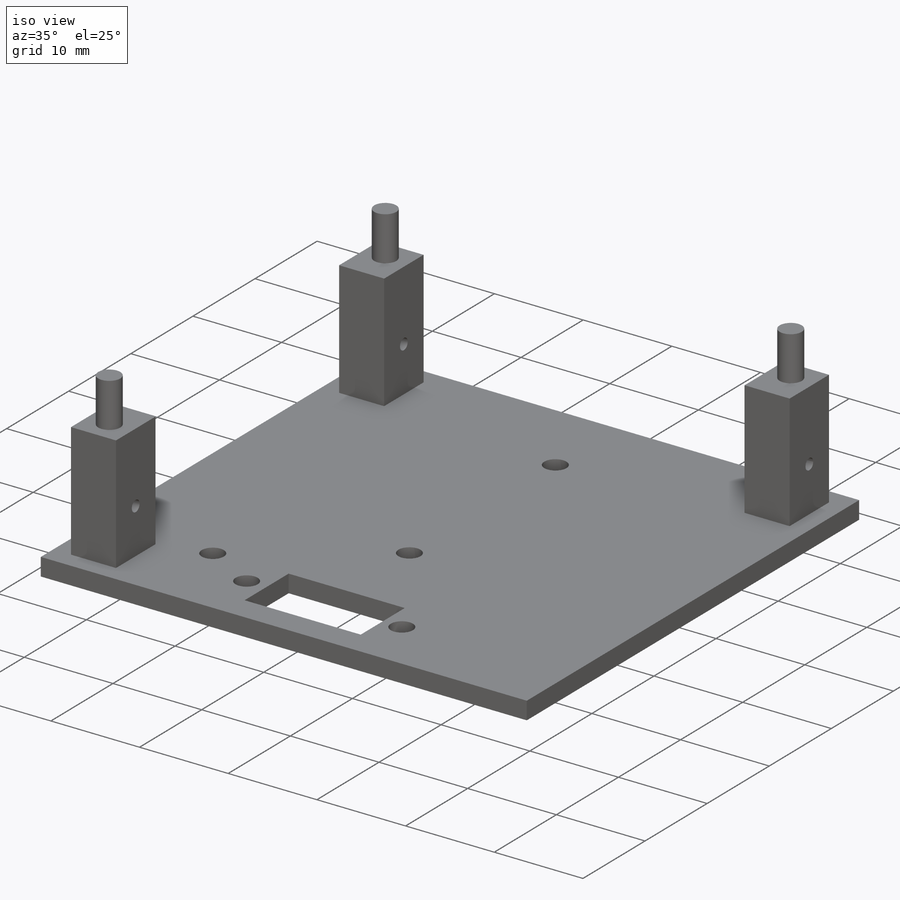
[diagram: iso view]
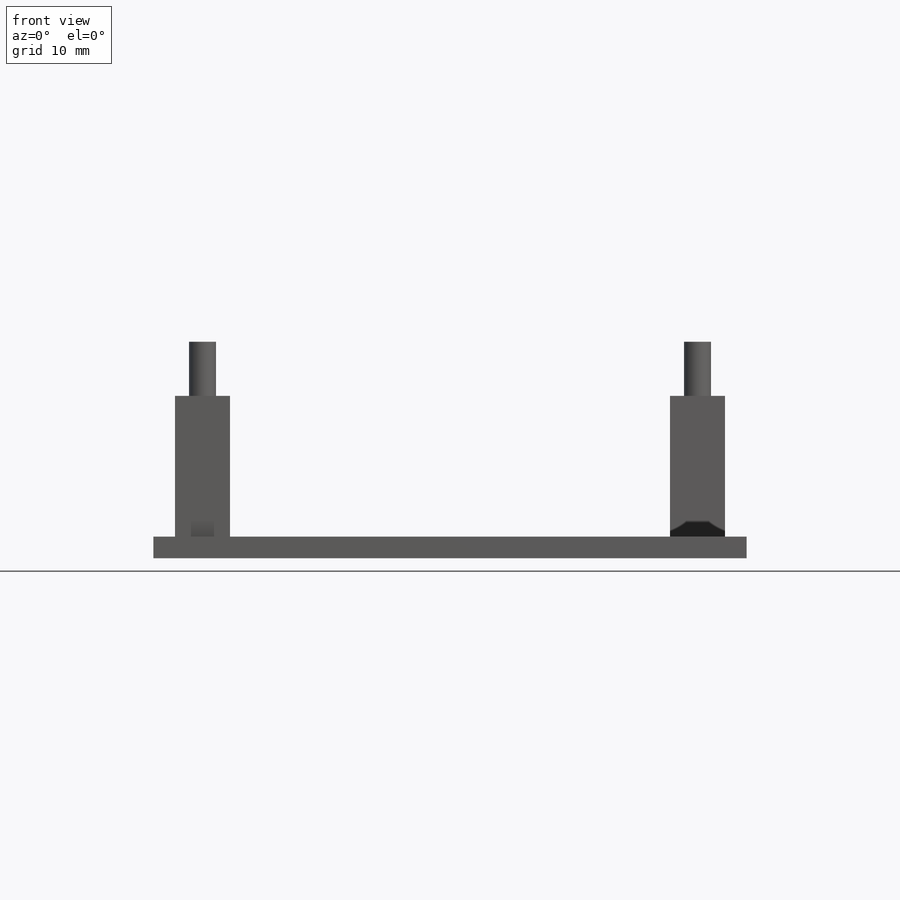
[diagram: front view]
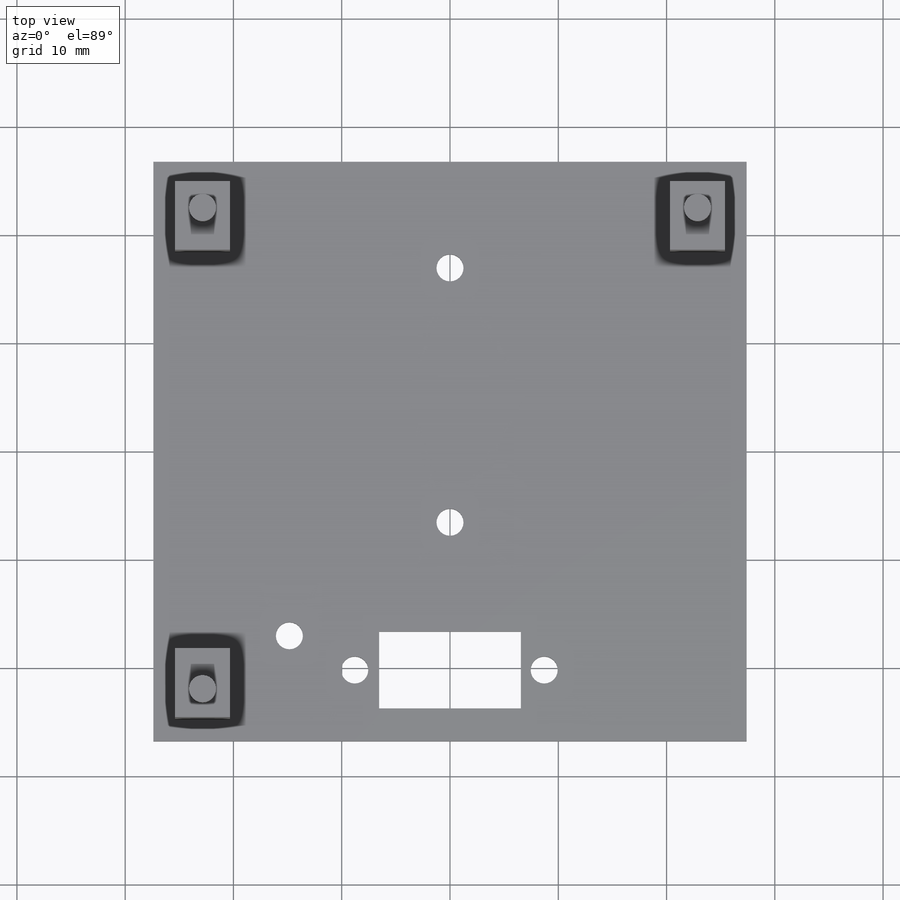
[diagram: top view]
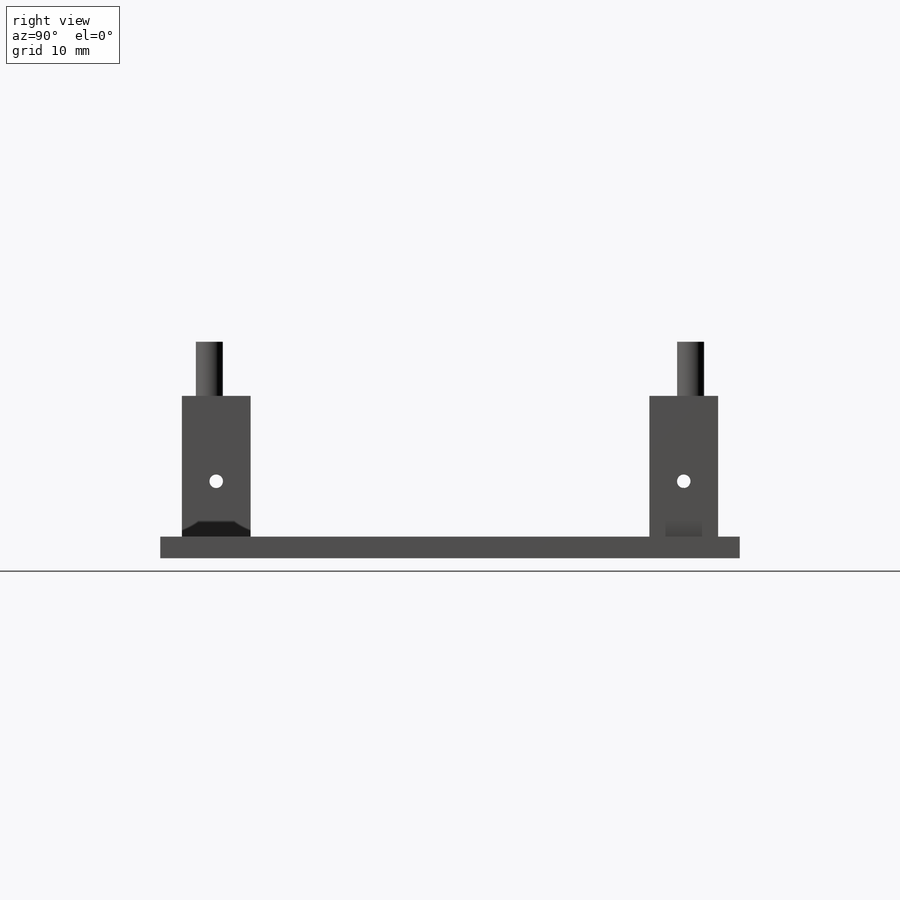
[diagram: right view]
SOLIDWORKS PART (.sldprt)
format: sldprt  version: not decoded by parser v0  size: 542,208 bytes
history: native  units: mm
features: sketch x10, cut_extrude x7, extrude x3, material x1 (+13 scaffold rows collapsed)
feature tree (34):
  scaffold x13  (default folders/planes/origin — collapsed)
  material  "Material <not specified>"
  sketch  "Sketch2"  dims[D1=54.8mm D2=53.53mm]
  extrude  "Boss-Extrude1"  Depth=2mm
  sketch  "Sketch3"  dims[D1=2.0mm D2=2.0mm D3=5.08mm D4=6.35mm D5=5.08mm D6=6.35mm D7=2.0mm D8=2.0mm D9=2.0mm D10=2.0mm D11=5.08mm D12=6.35mm]
  extrude  "Boss-Extrude2"  Depth=13mm
  sketch  "Sketch6"  dims[c1.D1=~1.860966mm c1.D3=~1.639025mm c1.D5=~1.783294mm c2.D1=2.54mm c2.D2=~3.451372mm c3.D2=90.0deg c4.D2=2.54mm c4.D3=2.54mm c4.D4=2.54mm c4.D5=2.54mm c4.D6=~3.590653mm c5.D6=90.0deg c6.D6=2.54mm c6.D4=2.54mm c6.D1=2.54mm c6.D7=45.72mm]
  extrude  "Boss-Extrude3"  Depth=5mm
  sketch  "Sketch7"  dims[D1=13.1mm D2=7.1mm]
  cut_extrude  "Cut-Extrude1"  [1 undecoded]
  sketch  "Sketch8"  dims[D1=23.5mm]
  cut_extrude  "Cut-Extrude2"  [1 undecoded]
  sketch  "Sketch9"  dims[D1=~5.114706mm]
  cut_extrude  "Cut-Extrude4"  [1 undecoded]
  sketch  "Sketch10"  dims[D1=3.18mm D2=5.11mm]
  cut_extrude  "Cut-Extrude5"  [1 undecoded]
  sketch  "Sketch11"  dims[c1.D1=3.18mm c1.D2=~3.691968mm c2.D2=90.0deg c3.D2=~3.691968mm c4.D2=90.0deg c5.D2=~3.691968mm c6.D2=90.0deg c7.D2=5.11mm]
  cut_extrude  "Cut-Extrude6"  [1 undecoded]
  sketch  "Sketch12"  dims[D1=~1.258891mm]
  cut_extrude  "Cut-Extrude7"  [1 undecoded]
  sketch  "Sketch13"  dims[D1=17.5mm D2=2.25mm]
  cut_extrude  "Cut-Extrude8"  [1 undecoded]
decode coverage: 13 of 20 modeling features carry decoded parameters
note: ~ marks probable driven/reference dimensions
note: 7 parameter values undecoded
summary: no parameter record found for 7 features
note: suppression state not decoded; provenance and decode notes live in map.json
